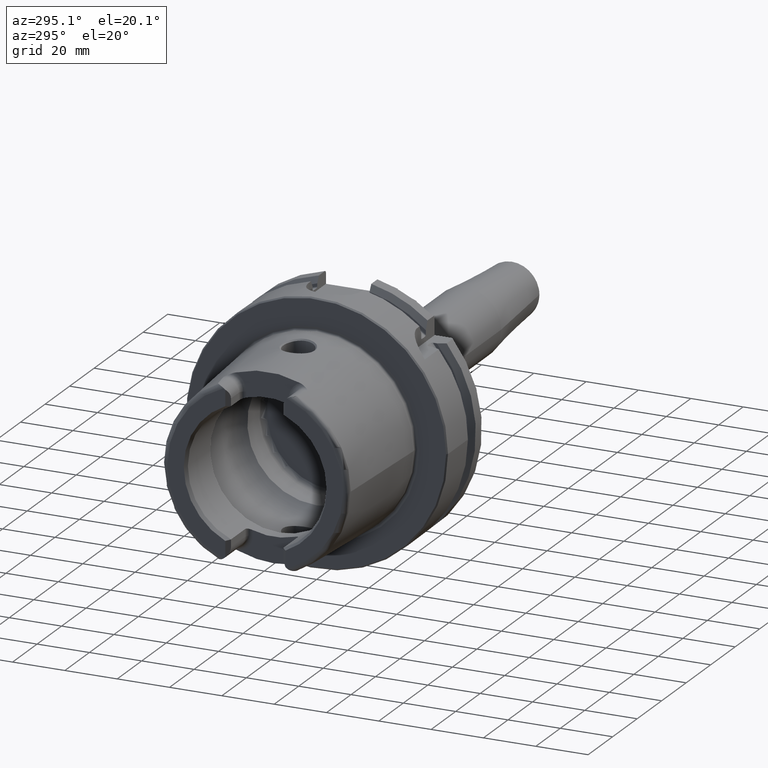
[diagram: clean part render]
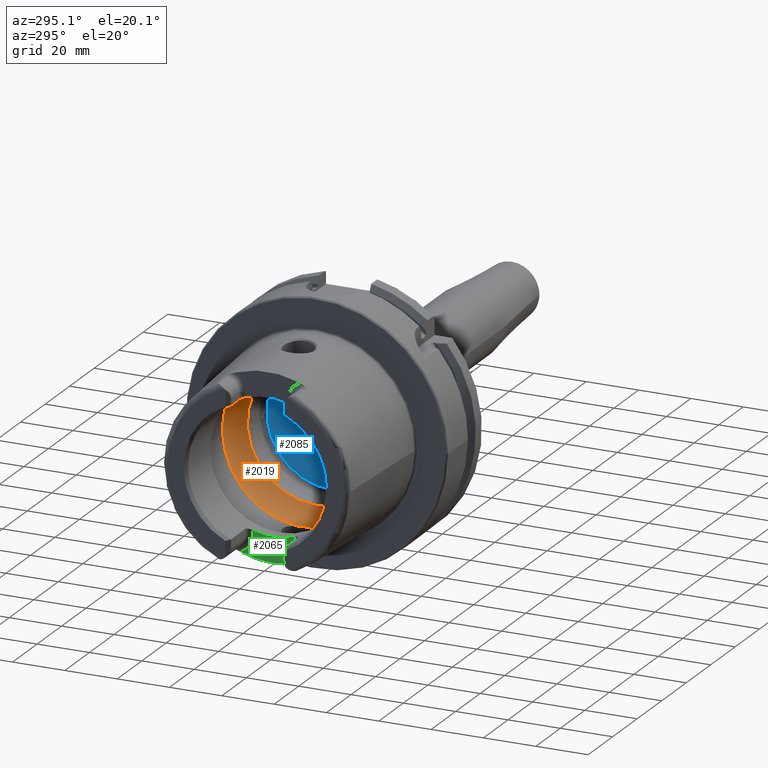
[diagram: same view with three faces highlighted in distinct colors, each labeled with its STEP entity id]
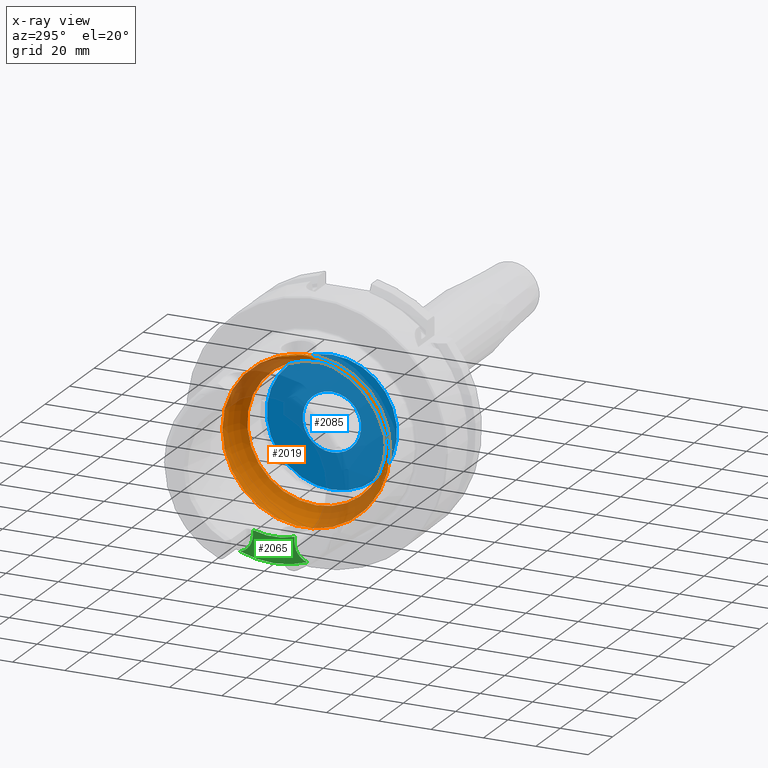
[diagram: x-ray of the same camera — body ghosted, the three highlighted faces saturated]
A machine part, auxiliary view with three faces highlighted in distinct colors.
The next image is the same camera in x-ray (body ghosted, the three faces saturated) — at least one of them is partly hidden behind the body in this view.
Their STEP definitions:

[orange] entity #2019 — the highlighted toroidal blend (fillet) surface has major radius 19.5 mm and minor (blend) radius 12 mm.
#48=B_SPLINE_CURVE_WITH_KNOTS('',3,(#3584,#3585,#3586,#3587,#3588,#3589,
#3590,#3591,#3592,#3593),.UNSPECIFIED.,.F.,.F.,(4,2,2,2,4),(-0.606113644645353,
-0.532141714710631,-0.407956541554012,-0.344441109025195,-0.303157612487306),
 .UNSPECIFIED.);
#50=B_SPLINE_CURVE_WITH_KNOTS('',3,(#3626,#3627,#3628,#3629,#3630,#3631,
#3632,#3633,#3634,#3635),.UNSPECIFIED.,.F.,.F.,(4,2,2,2,4),(-0.303157612487306,
-0.297161587155601,-0.247817233363509,-0.174446982686599,0.),
 .UNSPECIFIED.);
#53=B_SPLINE_CURVE_WITH_KNOTS('',3,(#3776,#3777,#3778,#3779,#3780,#3781,
#3782,#3783,#3784,#3785),.UNSPECIFIED.,.F.,.F.,(4,2,2,2,4),(-0.606113644645388,
-0.532141714710621,-0.407956541553997,-0.344441109025146,-0.303157612487227),
 .UNSPECIFIED.);
#55=B_SPLINE_CURVE_WITH_KNOTS('',3,(#3818,#3819,#3820,#3821,#3822,#3823,
#3824,#3825,#3826,#3827),.UNSPECIFIED.,.F.,.F.,(4,2,2,2,4),(-0.303157612487227,
-0.297161587155532,-0.247817233363497,-0.174446982686607,0.),
 .UNSPECIFIED.);
#138=TOROIDAL_SURFACE('',#2217,19.5,12.);
#244=FACE_OUTER_BOUND('',#372,.T.);
#372=EDGE_LOOP('',(#1525,#1526,#1527,#1528,#1529,#1530,#1531,#1532,#1533,
#1534,#1535));
#719=CIRCLE('',#2212,31.5);
#722=CIRCLE('',#2215,31.5);
#723=CIRCLE('',#2216,31.5);
#724=CIRCLE('',#2218,26.5);
#725=CIRCLE('',#2219,26.5);
#726=CIRCLE('',#2220,12.);
#893=VERTEX_POINT('',#3581);
#894=VERTEX_POINT('',#3583);
#895=VERTEX_POINT('',#3594);
#898=VERTEX_POINT('',#3774);
#899=VERTEX_POINT('',#3775);
#900=VERTEX_POINT('',#3786);
#901=VERTEX_POINT('',#3830);
#904=VERTEX_POINT('',#3840);
#905=VERTEX_POINT('',#3841);
#1126=EDGE_CURVE('',#894,#893,#48,.T.);
#1128=EDGE_CURVE('',#893,#895,#50,.T.);
#1132=EDGE_CURVE('',#898,#899,#53,.T.);
#1134=EDGE_CURVE('',#899,#900,#55,.T.);
#1136=EDGE_CURVE('',#901,#898,#719,.T.);
#1140=EDGE_CURVE('',#895,#901,#722,.T.);
#1141=EDGE_CURVE('',#900,#894,#723,.T.);
#1142=EDGE_CURVE('',#904,#905,#724,.T.);
#1143=EDGE_CURVE('',#905,#904,#725,.T.);
#1144=EDGE_CURVE('',#905,#893,#726,.T.);
#1525=ORIENTED_EDGE('',*,*,#1142,.F.);
#1526=ORIENTED_EDGE('',*,*,#1143,.F.);
#1527=ORIENTED_EDGE('',*,*,#1144,.T.);
#1528=ORIENTED_EDGE('',*,*,#1128,.T.);
#1529=ORIENTED_EDGE('',*,*,#1140,.T.);
#1530=ORIENTED_EDGE('',*,*,#1136,.T.);
#1531=ORIENTED_EDGE('',*,*,#1132,.T.);
#1532=ORIENTED_EDGE('',*,*,#1134,.T.);
#1533=ORIENTED_EDGE('',*,*,#1141,.T.);
#1534=ORIENTED_EDGE('',*,*,#1126,.T.);
#1535=ORIENTED_EDGE('',*,*,#1144,.F.);
#2019=ADVANCED_FACE('',(#244),#138,.F.);
#2212=AXIS2_PLACEMENT_3D('',#3831,#2602,#2603);
#2215=AXIS2_PLACEMENT_3D('',#3837,#2609,#2610);
#2216=AXIS2_PLACEMENT_3D('',#3838,#2611,#2612);
#2217=AXIS2_PLACEMENT_3D('',#3839,#2613,#2614);
#2218=AXIS2_PLACEMENT_3D('',#3842,#2615,#2616);
#2219=AXIS2_PLACEMENT_3D('',#3843,#2617,#2618);
#2220=AXIS2_PLACEMENT_3D('',#3844,#2619,#2620);
#2602=DIRECTION('center_axis',(-1.,0.,0.));
#2603=DIRECTION('ref_axis',(0.,0.,1.));
#2609=DIRECTION('center_axis',(-1.,0.,0.));
#2610=DIRECTION('ref_axis',(0.,0.,1.));
#2611=DIRECTION('center_axis',(-1.,0.,0.));
#2612=DIRECTION('ref_axis',(0.,0.,1.));
#2613=DIRECTION('center_axis',(-1.,0.,0.));
#2614=DIRECTION('ref_axis',(0.,0.,1.));
#2615=DIRECTION('center_axis',(-1.,0.,0.));
#2616=DIRECTION('ref_axis',(0.,0.,1.));
#2617=DIRECTION('center_axis',(-1.,0.,0.));
#2618=DIRECTION('ref_axis',(0.,0.,1.));
#2619=DIRECTION('center_axis',(0.,1.,-1.22464679914735E-16));
#2620=DIRECTION('ref_axis',(0.,-1.22464679914735E-16,-1.));
#3581=CARTESIAN_POINT('',(-9.,8.53116613017712E-16,-31.4767398822284));
#3583=CARTESIAN_POINT('',(-9.74679434480896,2.89893607109041,-31.3663222207471));
#3584=CARTESIAN_POINT('Ctrl Pts',(-9.74679434480898,2.89893607109041,-31.3663222207471));
#3585=CARTESIAN_POINT('Ctrl Pts',(-9.62803941549252,2.68373847757038,-31.3862111979079));
#3586=CARTESIAN_POINT('Ctrl Pts',(-9.52250794022164,2.46123932380009,-31.4027818190648));
#3587=CARTESIAN_POINT('Ctrl Pts',(-9.27707880675082,1.84905941644996,-31.4398086116956));
#3588=CARTESIAN_POINT('Ctrl Pts',(-9.16318715371328,1.45014848778478,-31.4552463037839));
#3589=CARTESIAN_POINT('Ctrl Pts',(-9.05448554629564,0.83406948853474,-31.4697090180031));
#3590=CARTESIAN_POINT('Ctrl Pts',(-9.02875508102837,0.623753972628784,-31.4730355369691));
#3591=CARTESIAN_POINT('Ctrl Pts',(-9.00473516300901,0.275210595137741,-31.4761342948647));
#3592=CARTESIAN_POINT('Ctrl Pts',(-9.,0.13762179988616,-31.4767398822284));
#3593=CARTESIAN_POINT('Ctrl Pts',(-9.,9.71445146547012E-16,-31.4767398822284));
#3594=CARTESIAN_POINT('',(-9.74679434480896,-2.89893607109041,-31.3663222207471));
#3626=CARTESIAN_POINT('Ctrl Pts',(-9.,9.83483832277069E-16,-31.4767398822284));
#3627=CARTESIAN_POINT('Ctrl Pts',(-9.,-0.0199882245331354,-31.4767398822284));
#3628=CARTESIAN_POINT('Ctrl Pts',(-9.00009988237686,-0.0399771452902417,
-31.4767270717783));
#3629=CARTESIAN_POINT('Ctrl Pts',(-9.00194380057016,-0.224464346212316,
-31.4764905359115));
#3630=CARTESIAN_POINT('Ctrl Pts',(-9.01035297969853,-0.388827878343727,
-31.4754151841588));
#3631=CARTESIAN_POINT('Ctrl Pts',(-9.0480310904853,-0.796171644009328,-31.4705320701686));
#3632=CARTESIAN_POINT('Ctrl Pts',(-9.08543037238412,-1.03809779370842,-31.4656619259797));
#3633=CARTESIAN_POINT('Ctrl Pts',(-9.26119500081336,-1.84501079512327,-31.441850680052));
#3634=CARTESIAN_POINT('Ctrl Pts',(-9.4667592962906,-2.39148034786879,-31.4132222586341));
#3635=CARTESIAN_POINT('Ctrl Pts',(-9.74679434480898,-2.89893607109041,-31.3663222207471));
#3774=CARTESIAN_POINT('',(-9.74679434480896,-2.89893607109042,31.3663222207471));
#3775=CARTESIAN_POINT('',(-8.99999999999999,7.8372767397864E-16,31.4767398822284));
#3776=CARTESIAN_POINT('Ctrl Pts',(-9.74679434480898,-2.89893607109042,31.3663222207471));
#3777=CARTESIAN_POINT('Ctrl Pts',(-9.62803941549257,-2.6837384775705,31.3862111979079));
#3778=CARTESIAN_POINT('Ctrl Pts',(-9.52250794022172,-2.46123932380032,31.4027818190648));
#3779=CARTESIAN_POINT('Ctrl Pts',(-9.27707880675083,-1.84905941645004,31.4398086116956));
#3780=CARTESIAN_POINT('Ctrl Pts',(-9.16318715371328,-1.45014848778485,31.4552463037839));
#3781=CARTESIAN_POINT('Ctrl Pts',(-9.05448554629561,-0.834069488534672,
31.4697090180031));
#3782=CARTESIAN_POINT('Ctrl Pts',(-9.02875508102836,-0.623753972628598,
31.4730355369691));
#3783=CARTESIAN_POINT('Ctrl Pts',(-9.00473516300902,-0.275210595137865,
31.4761342948647));
#3784=CARTESIAN_POINT('Ctrl Pts',(-8.99999999999999,-0.137621799886392,
31.4767398822284));
#3785=CARTESIAN_POINT('Ctrl Pts',(-8.99999999999999,9.0205620750794E-16,
31.4767398822284));
#3786=CARTESIAN_POINT('',(-9.74679434480896,2.89893607109042,31.3663222207471));
#3818=CARTESIAN_POINT('Ctrl Pts',(-8.99999999999999,8.7920239009422E-16,
31.4767398822284));
#3819=CARTESIAN_POINT('Ctrl Pts',(-8.99999999999999,0.0199882245331231,
31.4767398822284));
#3820=CARTESIAN_POINT('Ctrl Pts',(-9.00009988237684,0.0399771452902225,
31.4767270717783));
#3821=CARTESIAN_POINT('Ctrl Pts',(-9.00194380057014,0.224464346212396,31.4764905359115));
#3822=CARTESIAN_POINT('Ctrl Pts',(-9.01035297969852,0.388827878343765,31.4754151841588));
#3823=CARTESIAN_POINT('Ctrl Pts',(-9.0480310904853,0.79617164400948,31.4705320701686));
#3824=CARTESIAN_POINT('Ctrl Pts',(-9.08543037238414,1.03809779370849,31.4656619259797));
#3825=CARTESIAN_POINT('Ctrl Pts',(-9.26119500081334,1.84501079512323,31.441850680052));
#3826=CARTESIAN_POINT('Ctrl Pts',(-9.46675929629059,2.39148034786878,31.4132222586341));
#3827=CARTESIAN_POINT('Ctrl Pts',(-9.74679434480898,2.89893607109043,31.3663222207471));
#3830=CARTESIAN_POINT('',(-9.74679434480896,-31.5,3.85763741731416E-15));
#3831=CARTESIAN_POINT('Origin',(-9.74679434480896,0.,0.));
#3837=CARTESIAN_POINT('Origin',(-9.74679434480896,0.,0.));
#3838=CARTESIAN_POINT('Origin',(-9.74679434480896,0.,0.));
#3839=CARTESIAN_POINT('Origin',(-9.74679434480896,0.,0.));
#3840=CARTESIAN_POINT('',(0.,-26.5,3.24531401774049E-15));
#3841=CARTESIAN_POINT('',(0.,-3.24531401774049E-15,-26.5));
#3842=CARTESIAN_POINT('Origin',(0.,0.,0.));
#3843=CARTESIAN_POINT('Origin',(0.,0.,0.));
#3844=CARTESIAN_POINT('Origin',(-9.74679434480896,-2.38806125833734E-15,
-19.5));

[blue] entity #2085 — the highlighted planar face has unit normal (1, 0, 0).
#96=FACE_BOUND('',#442,.T.);
#132=PLANE('',#2346);
#310=FACE_OUTER_BOUND('',#441,.T.);
#441=EDGE_LOOP('',(#1885));
#442=EDGE_LOOP('',(#1886));
#780=CIRCLE('',#2335,11.188101);
#787=CIRCLE('',#2347,24.9);
#996=VERTEX_POINT('',#4459);
#1002=VERTEX_POINT('',#4479);
#1295=EDGE_CURVE('',#996,#996,#780,.T.);
#1304=EDGE_CURVE('',#1002,#1002,#787,.T.);
#1885=ORIENTED_EDGE('',*,*,#1304,.T.);
#1886=ORIENTED_EDGE('',*,*,#1295,.T.);
#2085=ADVANCED_FACE('',(#310,#96),#132,.F.);
#2335=AXIS2_PLACEMENT_3D('',#4460,#2905,#2906);
#2346=AXIS2_PLACEMENT_3D('',#4478,#2929,#2930);
#2347=AXIS2_PLACEMENT_3D('',#4480,#2931,#2932);
#2905=DIRECTION('center_axis',(1.,0.,0.));
#2906=DIRECTION('ref_axis',(0.,0.,1.));
#2929=DIRECTION('center_axis',(1.,0.,0.));
#2930=DIRECTION('ref_axis',(0.,0.,-1.));
#2931=DIRECTION('center_axis',(-1.,0.,0.));
#2932=DIRECTION('ref_axis',(0.,0.,1.));
#4459=CARTESIAN_POINT('',(12.5,-1.37014720781873E-15,-11.188101));
#4460=CARTESIAN_POINT('Origin',(12.5,0.,0.));
#4478=CARTESIAN_POINT('Origin',(12.5,24.9,0.));
#4479=CARTESIAN_POINT('',(12.5,-3.04937052987691E-15,-24.9));
#4480=CARTESIAN_POINT('Origin',(12.5,0.,0.));

[green] entity #2065 — the highlighted planar face has unit normal (-1, 0, 0).
#124=PLANE('',#2308);
#290=FACE_OUTER_BOUND('',#419,.T.);
#419=EDGE_LOOP('',(#1786,#1787,#1788,#1789,#1790,#1791));
#552=LINE('',#4392,#660);
#555=LINE('',#4404,#663);
#660=VECTOR('',#2834,10.);
#663=VECTOR('',#2849,10.);
#715=CIRCLE('',#2205,36.25399498998);
#766=CIRCLE('',#2302,6.88);
#769=CIRCLE('',#2309,26.5);
#770=CIRCLE('',#2310,6.88);
#886=VERTEX_POINT('',#3468);
#887=VERTEX_POINT('',#3479);
#988=VERTEX_POINT('',#4376);
#990=VERTEX_POINT('',#4381);
#992=VERTEX_POINT('',#4401);
#993=VERTEX_POINT('',#4403);
#1115=EDGE_CURVE('',#886,#887,#715,.T.);
#1269=EDGE_CURVE('',#988,#886,#766,.T.);
#1271=EDGE_CURVE('',#990,#988,#552,.T.);
#1276=EDGE_CURVE('',#992,#990,#769,.T.);
#1277=EDGE_CURVE('',#993,#992,#555,.T.);
#1278=EDGE_CURVE('',#887,#993,#770,.T.);
#1786=ORIENTED_EDGE('',*,*,#1269,.F.);
#1787=ORIENTED_EDGE('',*,*,#1271,.F.);
#1788=ORIENTED_EDGE('',*,*,#1276,.F.);
#1789=ORIENTED_EDGE('',*,*,#1277,.F.);
#1790=ORIENTED_EDGE('',*,*,#1278,.F.);
#1791=ORIENTED_EDGE('',*,*,#1115,.F.);
#2065=ADVANCED_FACE('',(#290),#124,.T.);
#2205=AXIS2_PLACEMENT_3D('',#3480,#2585,#2586);
#2302=AXIS2_PLACEMENT_3D('',#4378,#2830,#2831);
#2308=AXIS2_PLACEMENT_3D('',#4400,#2845,#2846);
#2309=AXIS2_PLACEMENT_3D('',#4402,#2847,#2848);
#2310=AXIS2_PLACEMENT_3D('',#4405,#2850,#2851);
#2585=DIRECTION('center_axis',(1.,0.,0.));
#2586=DIRECTION('ref_axis',(0.,1.,0.));
#2830=DIRECTION('center_axis',(-1.,0.,0.));
#2831=DIRECTION('ref_axis',(0.,0.510937901715381,-0.8596176246394));
#2834=DIRECTION('',(0.,0.,-1.));
#2845=DIRECTION('center_axis',(-1.,0.,0.));
#2846=DIRECTION('ref_axis',(0.,0.,1.));
#2847=DIRECTION('center_axis',(-1.,0.,0.));
#2848=DIRECTION('ref_axis',(0.,1.,0.));
#2849=DIRECTION('',(0.,0.,1.));
#2850=DIRECTION('center_axis',(-1.,0.,0.));
#2851=DIRECTION('ref_axis',(0.,-0.510937901715381,-0.8596176246394));
#3468=CARTESIAN_POINT('',(-35.,-12.7918651267415,-33.9222690767105));
#3479=CARTESIAN_POINT('',(-35.,12.7918651267415,-33.9222690767105));
#3480=CARTESIAN_POINT('Origin',(-35.,0.,0.));
#4376=CARTESIAN_POINT('',(-35.,-8.01,-27.37));
#4378=CARTESIAN_POINT('Origin',(-35.,-14.89,-27.37));
#4381=CARTESIAN_POINT('',(-35.,-8.01,-25.2604414054862));
#4392=CARTESIAN_POINT('',(-35.,-8.01,-28.685));
#4400=CARTESIAN_POINT('Origin',(-35.,8.88178419700125E-15,-30.));
#4401=CARTESIAN_POINT('',(-35.,8.01,-25.2604414054862));
#4402=CARTESIAN_POINT('Origin',(-35.,0.,0.));
#4403=CARTESIAN_POINT('',(-35.,8.01,-27.37));
#4404=CARTESIAN_POINT('',(-35.,8.01,-25.));
#4405=CARTESIAN_POINT('Origin',(-35.,14.89,-27.37));